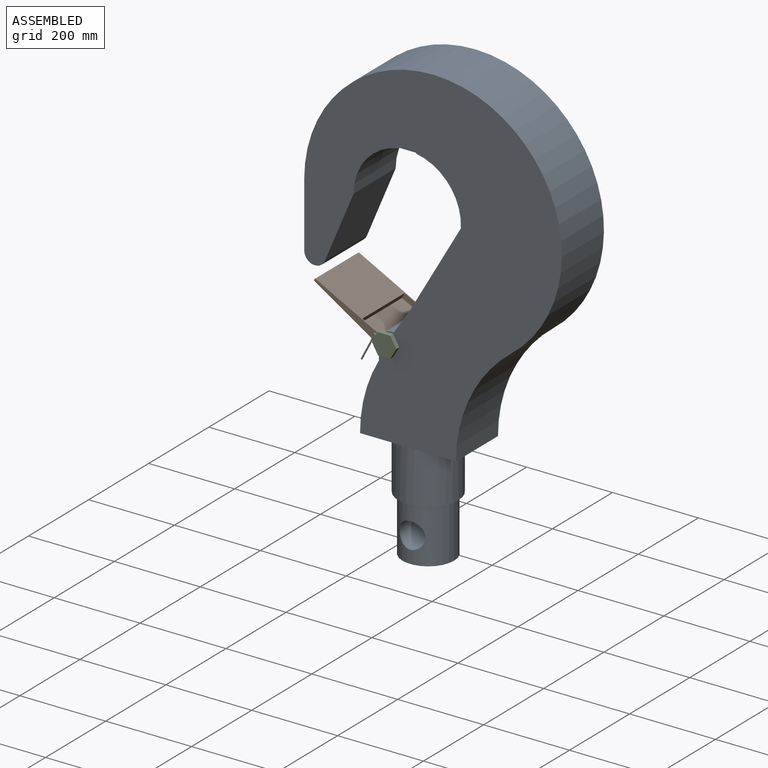
[diagram: assembled view]
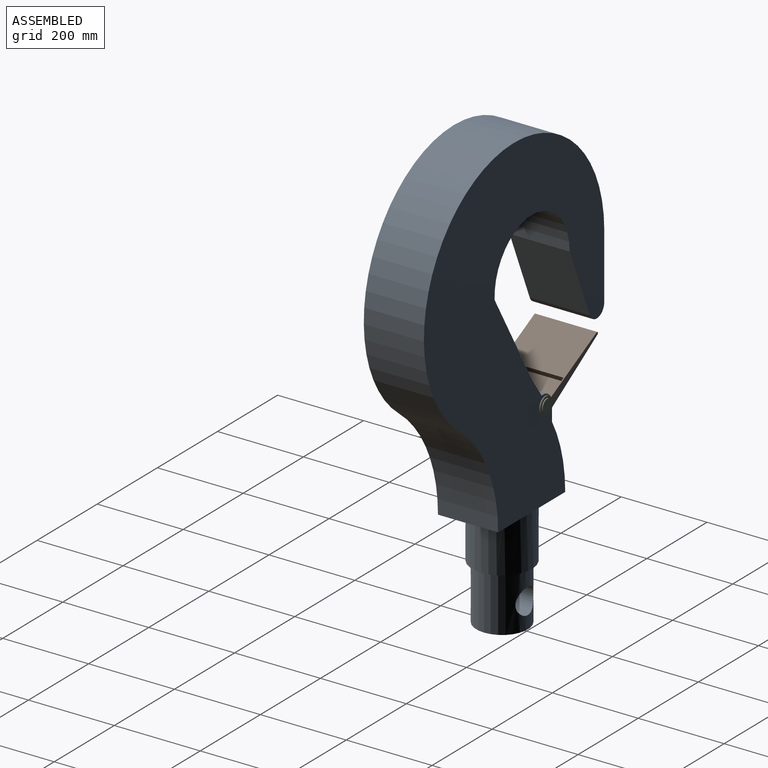
[diagram: assembled view, second angle]
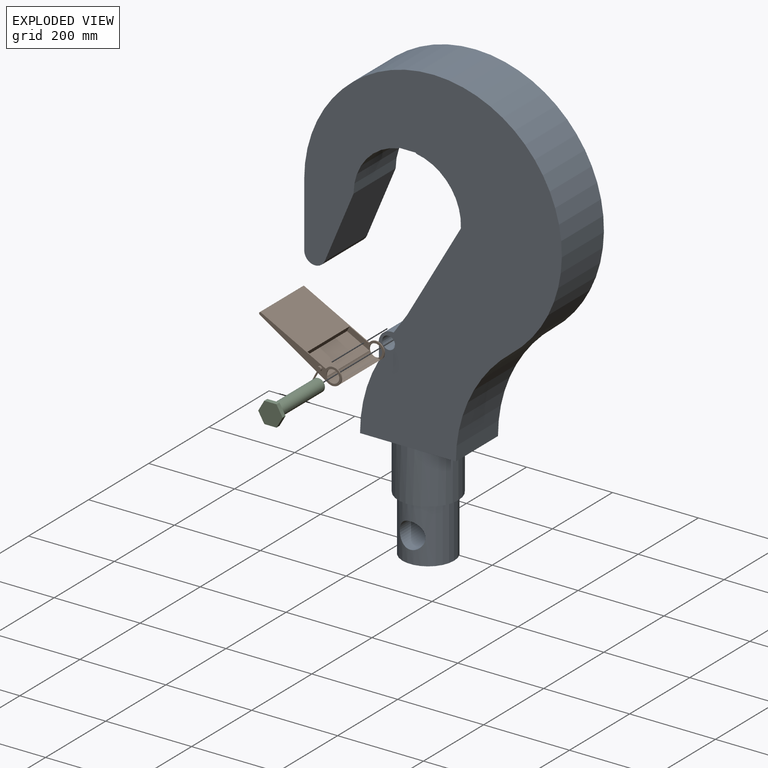
[diagram: exploded view]
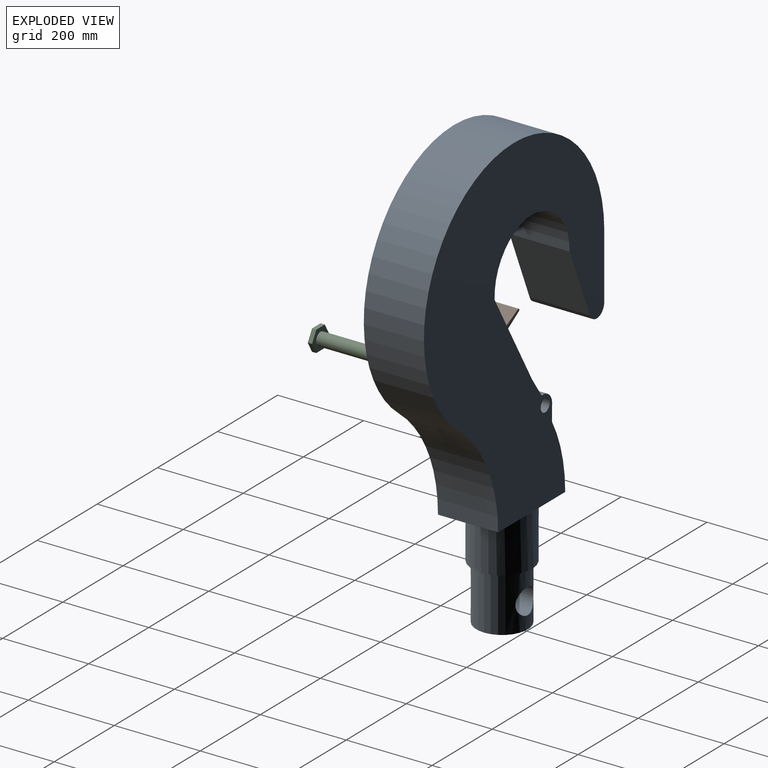
[diagram: exploded view, second angle]
ASSEMBLY  parts=3 mates=2
PART A: 25 faces, bbox 600x140x1050 mm
  f0: cylinder r=60mm len=130mm, axis (0,0,1), area 43158mm2, adj f2,f3,f23
  f1: cylinder r=70mm len=140mm, axis (0,0,1), area 52778.8mm2, adj f2,f4,f5
  f2: plane 140x140mm, normal (0,0,-1), area 4084.1mm2, adj f0,f1
  f3: plane 120x120mm, normal (0,0,-1), area 11309.7mm2, adj f0
  f4: plane 140x110mm, normal (0,0,-1), area 7703.1mm2, adj f1,f15,f21,f22
  f5: plane 140x113.28mm, normal (0,0,-1), area 8161.6mm2, adj f1,f16,f21,f22
  f6: cylinder r=125mm len=140mm, axis (0,1,0), area 24676.8mm2, adj f7,f20,f21,f22
  f7: plane 140x1.56mm, normal (1,0,0), area 218.2mm2, adj f6,f8,f21,f22
  f8: plane 140x40mm, normal (0,0,-1), area 5600mm2, adj f7,f9,f21,f22
  f9: plane 140x1.56mm, normal (-1,0,0), area 218.2mm2, adj f8,f10,f21,f22
  f10: cylinder r=125mm len=140mm, axis (0,1,0), area 25571.4mm2, adj f9,f11,f21,f22
  f11: plane 215.2x140mm, normal (-0.86,0,0.5), area 34830.4mm2, adj f10,f12,f21,f22
  f12: plane 140x45.84mm, normal (-0.82,0,0.57), area 7800mm2, adj f11,f13,f21,f22
  f13: cylinder r=30mm len=140mm, axis (0,1,0), area 8131.9mm2, adj f12,f14,f21,f22
  f14: plane 140x32.55mm, normal (-1,0,0), area 4556.4mm2, adj f13,f15,f21,f22
  f15: cylinder r=330mm len=164.53mm, axis (0,1,0), area 24113.8mm2, adj f4,f14,f21,f22
  f16: cylinder r=330mm len=261.9mm, axis (0,1,0), area 42355.5mm2, adj f5,f17,f21,f22
  f17: cylinder r=300mm len=600mm, axis (0,1,0), area 170451.9mm2, adj f16,f18,f21,f22
  f18: plane 150x140mm, normal (-1,0,0), area 21000mm2, adj f17,f19,f21,f22
  f19: cylinder r=25mm len=140mm, axis (0,1,0), area 9606mm2, adj f18,f20,f21,f22
  f20: plane 159.67x140mm, normal (0.92,0,-0.39), area 24238.6mm2, adj f6,f19,f21,f22
  f21: plane 800x600mm, normal (0,-1,0), area 253366.2mm2, adj f4,f5,f6,f7,f8,f9,f10,f11
  f22: plane 800x600mm, normal (0,1,0), area 253366.2mm2, adj f4,f5,f6,f7,f8,f9,f10,f11
  f23: cylinder r=30mm len=120mm, axis (0,1,0), area 21131.3mm2, adj f0
  f24: cylinder r=15mm len=140mm, axis (0,-1,0), area 13194.7mm2, adj f21,f22
PART B: 18 faces, bbox 213x150x90 mm
  f0: cylinder r=5mm len=10mm, axis (0,1,0), area 137.5mm2, adj f6,f13,f15,f16
  f1: plane 170.3x145mm, normal (0,0,-1), area 17661.4mm2, adj f3,f4,f6,f7,f10,f11,f12
  f2: cylinder r=15mm len=145mm, axis (0,1,0), area 4003.7mm2, adj f6,f7,f8,f9,f10,f11
  f3: cylinder r=20mm len=145mm, axis (0,1,0), area 3350.9mm2, adj f1,f5,f6,f7,f8,f10,f11
  f4: cylinder r=3mm len=145mm, axis (0,1,0), area 1317.6mm2, adj f1,f5,f6,f7
  f5: plane 190.53x145mm, normal (0.09,0,1), area 27736mm2, adj f3,f4,f6,f7
  f6: plane 213x40mm, normal (0,-1,0), area 2865.1mm2, adj f0,f1,f2,f3,f4,f5
  f7: plane 213x40mm, normal (0,1,0), area 2943.6mm2, adj f1,f2,f3,f4,f5
  f8: plane 140x6.14mm, normal (0,0,-1), area 859.6mm2, adj f2,f3,f10,f11
  f9: plane 140x58.82mm, normal (0,0,-1), area 8234.8mm2, adj f2,f10,f11,f12
  f10: plane 90x30mm, normal (0,-1,0), area 1040.4mm2, adj f1,f2,f3,f8,f9,f12
  f11: plane 90x30mm, normal (0,1,0), area 1040.4mm2, adj f1,f2,f3,f8,f9,f12
  f12: plane 140x13mm, normal (-1,0,0), area 1819.9mm2, adj f1,f9,f10,f11
  f13: plane 10x10mm, normal (0,-1,0), area 78.5mm2, adj f0
  f14: plane 3.5x3.5mm, normal (0,0,-1), area 9.6mm2, adj f15
  f15: cylinder r=1.75mm len=3.5mm, axis (0,0,-1), area 4.5mm2, adj f0,f14
  f16: cylinder r=1.75mm len=60.2mm, axis (0,0,-1), area 658.9mm2, adj f0,f17
  f17: plane 3.5x3.5mm, normal (0,0,1), area 9.6mm2, adj f16
PART C: 10 faces, bbox 56.7x160x49.1 mm
  f0: cylinder r=15mm len=150mm, axis (0,1,0), area 14137.2mm2, adj f1,f9
  f1: plane 30x30mm, normal (0,1,0), area 706.9mm2, adj f0
  f2: plane 28.37x10mm, normal (0,0,1), area 283.7mm2, adj f3,f7,f8,f9
  f3: plane 24.57x14.18mm, normal (-0.87,0,0.5), area 283.7mm2, adj f2,f4,f8,f9
  f4: plane 24.57x14.18mm, normal (-0.87,0,-0.5), area 283.7mm2, adj f3,f5,f8,f9
  f5: plane 28.37x10mm, normal (0,0,-1), area 283.7mm2, adj f4,f6,f8,f9
  f6: plane 24.57x14.18mm, normal (0.87,0,-0.5), area 283.7mm2, adj f5,f7,f8,f9
  f7: plane 24.57x14.18mm, normal (0.87,0,0.5), area 283.7mm2, adj f2,f6,f8,f9
  f8: plane 56.74x49.14mm, normal (0,-1,0), area 2091mm2, adj f2,f3,f4,f5,f6,f7
  f9: plane 56.74x49.14mm, normal (0,1,0), area 1384.2mm2, adj f0,f2,f3,f4,f5,f6,f7
PLACE A t=(-750.94,-82.64,-8.12)mm
PLACE B rot(axis=(0,-1,0),152.7deg) t=(-773.48,-98.6,196)mm
PLACE C t=(-794.43,-82.64,199.66)mm
MATE cylindrical B.f2 <-> A.f24  axis (0,1,0) through (-794.43,-152.64,199.66)mm
MATE pin_slot C.f0 <-> A.f24  axis (0,1,0) through (-794.43,-82.64,199.66)mm
